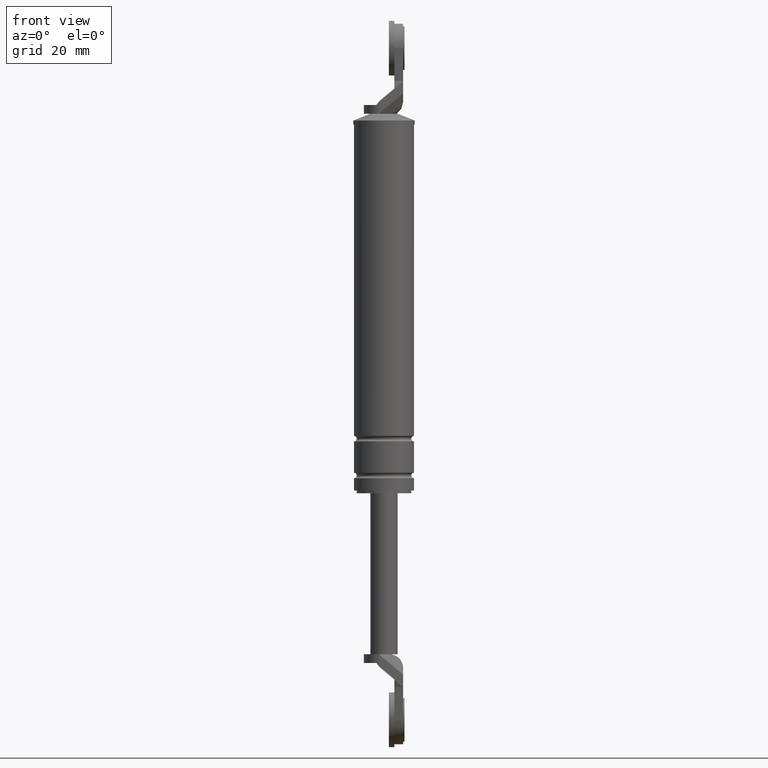
[diagram: clean part render]
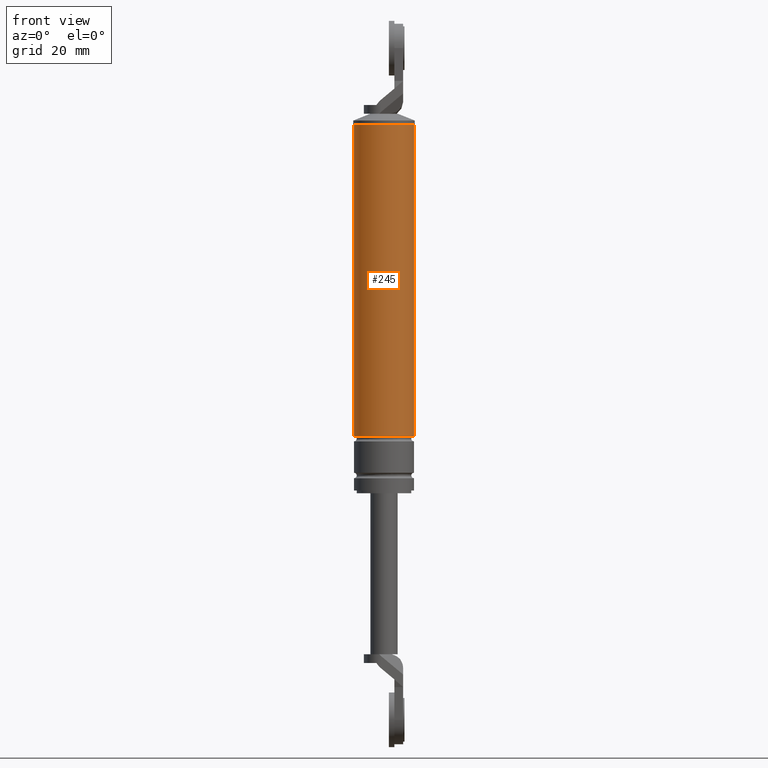
[diagram: same view with one face highlighted and labeled with its STEP entity id]
A machine part, front view. The second image highlights one B-rep face of the part: STEP entity #245.
In plain terms, the highlighted cylindrical surface (edge-blend (fillet) strip) has radius 11 mm, axis along (0, 0, 1).
Its self-contained STEP definition (entity closure, byte-faithful):
#245=ADVANCED_FACE('',(#705),#704,.T.);
#704=CYLINDRICAL_SURFACE('',#1412,1.10000000000E+001);
#705=FACE_OUTER_BOUND('',#1413,.T.);
#1409=CARTESIAN_POINT('',(0.00000000000E+000,3.58204186421E-014,0.00000000000E+000));
#1410=DIRECTION('',(-0.00000000000E+000,-0.00000000000E+000,1.00000000000E+000));
#1411=DIRECTION('',(-1.00000000000E+000,1.22464679915E-016,0.00000000000E+000));
#1412=AXIS2_PLACEMENT_3D('',#1409,#1410,#1411);
#1413=EDGE_LOOP('',(#1958,#1959,#1960,#1961));
#1958=ORIENTED_EDGE('',*,*,#2255,.F.);
#1959=ORIENTED_EDGE('',*,*,#2263,.F.);
#1960=ORIENTED_EDGE('',*,*,#2264,.F.);
#1961=ORIENTED_EDGE('',*,*,#2265,.T.);
#2255=EDGE_CURVE('',#3001,#3000,#3008,.T.);
#2263=EDGE_CURVE('',#3058,#3001,#3059,.T.);
#2264=EDGE_CURVE('',#3065,#3058,#3066,.T.);
#2265=EDGE_CURVE('',#3065,#3000,#3072,.T.);
#3000=VERTEX_POINT('',#4076);
#3001=VERTEX_POINT('',#4077);
#3008=CIRCLE('',#4085,1.10000000000E+001);
#3058=VERTEX_POINT('',#4107);
#3059=(BOUNDED_CURVE() B_SPLINE_CURVE(1,(#4108,#4109),.UNSPECIFIED.,.F.,.F.) B_SPLINE_CURVE_WITH_KNOTS((2,2),(7.46268656100E-002,9.25373134135E-001),.UNSPECIFIED.) CURVE() GEOMETRIC_REPRESENTATION_ITEM() RATIONAL_B_SPLINE_CURVE((1.00000000000E+000,1.00000000000E+000)) REPRESENTATION_ITEM('') );
#3065=VERTEX_POINT('',#4110);
#3066=CIRCLE('',#4114,1.10000000000E+001);
#3072=(BOUNDED_CURVE() B_SPLINE_CURVE(1,(#4115,#4116),.UNSPECIFIED.,.F.,.F.) B_SPLINE_CURVE_WITH_KNOTS((2,2),(7.46268656716E-002,9.25373134328E-001),.UNSPECIFIED.) CURVE() GEOMETRIC_REPRESENTATION_ITEM() RATIONAL_B_SPLINE_CURVE((7.50000000000E-001,7.50000000000E-001)) REPRESENTATION_ITEM('') );
#4076=CARTESIAN_POINT('',(1.10000000000E+001,3.58204186421E-014,8.49999850000E+001));
#4077=CARTESIAN_POINT('',(-1.10000000000E+001,3.61192557345E-014,8.49999850000E+001));
#4082=CARTESIAN_POINT('',(0.00000000000E+000,3.58204186421E-014,8.49999850000E+001));
#4083=DIRECTION('',(0.00000000000E+000,0.00000000000E+000,1.00000000000E+000));
#4084=DIRECTION('',(1.00000000000E+000,-1.22460635382E-016,0.00000000000E+000));
#4085=AXIS2_PLACEMENT_3D('',#4082,#4083,#4084);
#4107=CARTESIAN_POINT('',(-1.10000000000E+001,3.58204186421E-014,-2.90000150000E+001));
#4108=CARTESIAN_POINT('',(-1.10000000000E+001,3.71675301212E-014,-2.90000150083E+001));
#4109=CARTESIAN_POINT('',(-1.10000000000E+001,3.71675301212E-014,8.49999849741E+001));
#4110=CARTESIAN_POINT('',(1.10000000000E+001,3.61192557345E-014,-2.90000150000E+001));
#4111=CARTESIAN_POINT('',(0.00000000000E+000,3.58204186421E-014,-2.90000150000E+001));
#4112=DIRECTION('',(-0.00000000000E+000,0.00000000000E+000,-1.00000000000E+000));
#4113=DIRECTION('',(-1.00000000000E+000,-1.22460635382E-016,0.00000000000E+000));
#4114=AXIS2_PLACEMENT_3D('',#4111,#4112,#4113);
#4115=CARTESIAN_POINT('',(1.10000000000E+001,3.49350178415E-014,-2.90000150000E+001));
#4116=CARTESIAN_POINT('',(1.10000000000E+001,3.49350178415E-014,8.49999850000E+001));